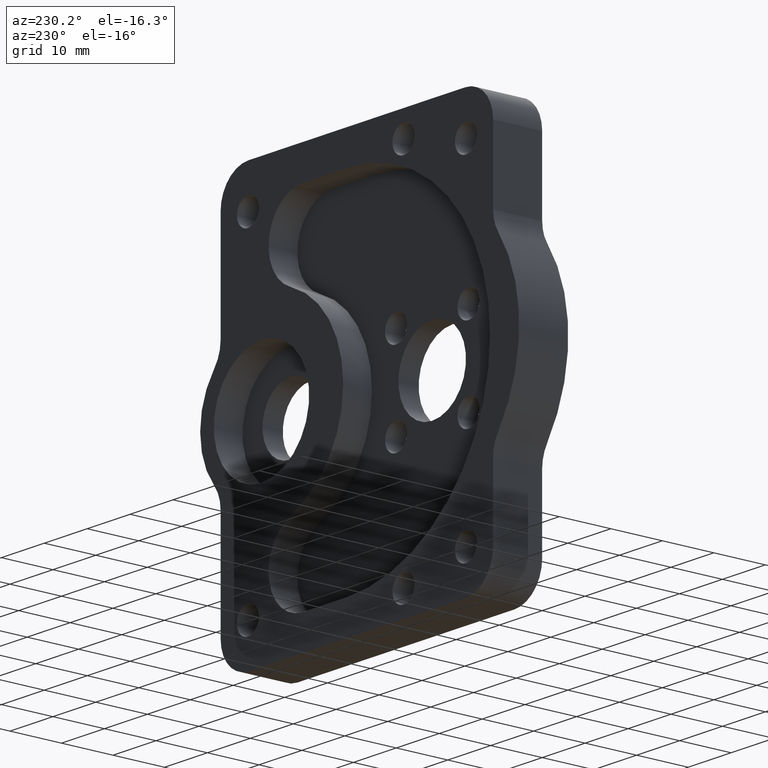
[diagram: clean part render]
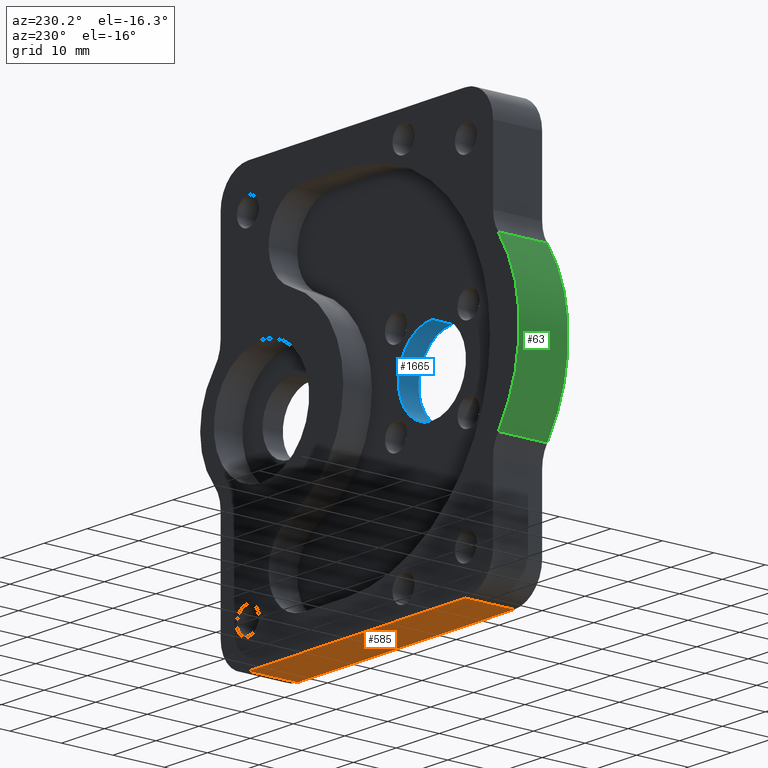
[diagram: same view with three faces highlighted in distinct colors, each labeled with its STEP entity id]
A machine part, auxiliary view with three faces highlighted in distinct colors.
Their STEP definitions:

[orange] entity #585 — the highlighted planar face has unit normal (0, 0, 1).
#8 = ORIENTED_EDGE ( 'NONE', *, *, #1420, .T. ) ;
#193 = EDGE_CURVE ( 'NONE', #611, #2001, #1591, .T. ) ;
#308 = ORIENTED_EDGE ( 'NONE', *, *, #372, .T. ) ;
#372 = EDGE_CURVE ( 'NONE', #982, #1161, #2130, .T. ) ;
#508 = DIRECTION ( 'NONE',  ( -1.000000000000000000, -0.0000000000000000000, -0.0000000000000000000 ) ) ;
#509 = ORIENTED_EDGE ( 'NONE', *, *, #1791, .F. ) ;
#513 = CARTESIAN_POINT ( 'NONE',  ( 2.245000000000000107, 0.0000000000000000000, -3.125000000000000000 ) ) ;
#529 = DIRECTION ( 'NONE',  ( -0.0000000000000000000, 1.000000000000000000, -0.0000000000000000000 ) ) ;
#585 = ADVANCED_FACE ( 'NONE', ( #963 ), #1828, .F. ) ;
#611 = VERTEX_POINT ( 'NONE', #1932 ) ;
#784 = DIRECTION ( 'NONE',  ( -1.000000000000000000, -0.0000000000000000000, -0.0000000000000000000 ) ) ;
#823 = CARTESIAN_POINT ( 'NONE',  ( 0.2550000000000000044, 0.3750000000000000555, -3.125000000000000000 ) ) ;
#963 = FACE_OUTER_BOUND ( 'NONE', #1896, .T. ) ;
#982 = VERTEX_POINT ( 'NONE', #1071 ) ;
#1071 = CARTESIAN_POINT ( 'NONE',  ( 2.245000000000000107, 0.3750000000000000555, -3.125000000000000000 ) ) ;
#1121 = DIRECTION ( 'NONE',  ( 1.000000000000000000, 0.0000000000000000000, -0.0000000000000000000 ) ) ;
#1137 = AXIS2_PLACEMENT_3D ( 'NONE', #2154, #1461, #1121 ) ;
#1158 = CARTESIAN_POINT ( 'NONE',  ( 0.0000000000000000000, 0.3750000000000000555, -3.125000000000000000 ) ) ;
#1161 = VERTEX_POINT ( 'NONE', #513 ) ;
#1215 = VECTOR ( 'NONE', #784, 39.37007874015748143 ) ;
#1252 = CARTESIAN_POINT ( 'NONE',  ( 0.2550000000000000044, 0.3750000000000000555, -3.125000000000000000 ) ) ;
#1290 = VECTOR ( 'NONE', #529, 39.37007874015748143 ) ;
#1420 = EDGE_CURVE ( 'NONE', #1161, #611, #2156, .T. ) ;
#1453 = VECTOR ( 'NONE', #1807, 39.37007874015748143 ) ;
#1461 = DIRECTION ( 'NONE',  ( 0.0000000000000000000, 0.0000000000000000000, 1.000000000000000000 ) ) ;
#1465 = CARTESIAN_POINT ( 'NONE',  ( 0.0000000000000000000, 0.0000000000000000000, -3.125000000000000000 ) ) ;
#1479 = ORIENTED_EDGE ( 'NONE', *, *, #193, .T. ) ;
#1591 = LINE ( 'NONE', #823, #1290 ) ;
#1790 = CARTESIAN_POINT ( 'NONE',  ( 2.245000000000000107, 0.3750000000000000555, -3.125000000000000000 ) ) ;
#1791 = EDGE_CURVE ( 'NONE', #982, #2001, #1851, .T. ) ;
#1807 = DIRECTION ( 'NONE',  ( -0.0000000000000000000, -1.000000000000000000, 0.0000000000000000000 ) ) ;
#1828 = PLANE ( 'NONE',  #1137 ) ;
#1851 = LINE ( 'NONE', #1158, #1904 ) ;
#1896 = EDGE_LOOP ( 'NONE', ( #509, #308, #8, #1479 ) ) ;
#1904 = VECTOR ( 'NONE', #508, 39.37007874015748143 ) ;
#1932 = CARTESIAN_POINT ( 'NONE',  ( 0.2550000000000000044, 0.0000000000000000000, -3.125000000000000000 ) ) ;
#2001 = VERTEX_POINT ( 'NONE', #1252 ) ;
#2130 = LINE ( 'NONE', #1790, #1453 ) ;
#2154 = CARTESIAN_POINT ( 'NONE',  ( 0.0000000000000000000, 0.3750000000000000555, -3.125000000000000000 ) ) ;
#2156 = LINE ( 'NONE', #1465, #1215 ) ;

[blue] entity #1665 — the highlighted cylindrical surface (partial cylindrical patch) has radius 7.874 mm, axis along (-0, 1, -0).
#35 = ORIENTED_EDGE ( 'NONE', *, *, #1292, .T. ) ;
#82 = CARTESIAN_POINT ( 'NONE',  ( 0.8229999999999999538, 0.1549999999999999989, -1.252500000000000169 ) ) ;
#200 = LINE ( 'NONE', #603, #890 ) ;
#245 = FACE_OUTER_BOUND ( 'NONE', #562, .T. ) ;
#257 = DIRECTION ( 'NONE',  ( -0.0000000000000000000, 1.000000000000000000, -0.0000000000000000000 ) ) ;
#259 = ORIENTED_EDGE ( 'NONE', *, *, #1123, .F. ) ;
#260 = DIRECTION ( 'NONE',  ( 0.0000000000000000000, 0.0000000000000000000, -1.000000000000000000 ) ) ;
#366 = CARTESIAN_POINT ( 'NONE',  ( 0.8229999999999999538, 0.0000000000000000000, -1.252500000000000169 ) ) ;
#392 = DIRECTION ( 'NONE',  ( -0.0000000000000000000, 1.000000000000000000, -0.0000000000000000000 ) ) ;
#398 = CIRCLE ( 'NONE', #1180, 0.3099999999999999978 ) ;
#562 = EDGE_LOOP ( 'NONE', ( #259, #2032, #35, #909 ) ) ;
#591 = AXIS2_PLACEMENT_3D ( 'NONE', #941, #1377, #1844 ) ;
#603 = CARTESIAN_POINT ( 'NONE',  ( 0.8229999999999999538, 0.0000000000000000000, -1.872500000000000053 ) ) ;
#637 = CARTESIAN_POINT ( 'NONE',  ( 0.8229999999999999538, 0.0000000000000000000, -1.252500000000000169 ) ) ;
#890 = VECTOR ( 'NONE', #1027, 39.37007874015748143 ) ;
#908 = EDGE_CURVE ( 'NONE', #1159, #1969, #398, .T. ) ;
#909 = ORIENTED_EDGE ( 'NONE', *, *, #908, .T. ) ;
#927 = VECTOR ( 'NONE', #257, 39.37007874015748143 ) ;
#941 = CARTESIAN_POINT ( 'NONE',  ( 0.8229999999999999538, 0.0000000000000000000, -1.562500000000000000 ) ) ;
#953 = CARTESIAN_POINT ( 'NONE',  ( 0.8229999999999999538, 0.1549999999999999989, -1.872500000000000053 ) ) ;
#1027 = DIRECTION ( 'NONE',  ( -0.0000000000000000000, 1.000000000000000000, -0.0000000000000000000 ) ) ;
#1038 = CARTESIAN_POINT ( 'NONE',  ( 0.8229999999999999538, 0.0000000000000000000, -1.562500000000000000 ) ) ;
#1123 = EDGE_CURVE ( 'NONE', #2021, #1969, #200, .T. ) ;
#1154 = EDGE_CURVE ( 'NONE', #1418, #2021, #2078, .T. ) ;
#1159 = VERTEX_POINT ( 'NONE', #82 ) ;
#1180 = AXIS2_PLACEMENT_3D ( 'NONE', #1536, #1991, #260 ) ;
#1292 = EDGE_CURVE ( 'NONE', #1418, #1159, #2107, .T. ) ;
#1377 = DIRECTION ( 'NONE',  ( 0.0000000000000000000, 1.000000000000000000, 0.0000000000000000000 ) ) ;
#1394 = CARTESIAN_POINT ( 'NONE',  ( 0.8229999999999999538, 0.0000000000000000000, -1.872500000000000053 ) ) ;
#1418 = VERTEX_POINT ( 'NONE', #637 ) ;
#1536 = CARTESIAN_POINT ( 'NONE',  ( 0.8229999999999999538, 0.1549999999999999989, -1.562500000000000000 ) ) ;
#1665 = ADVANCED_FACE ( 'NONE', ( #245 ), #1737, .F. ) ;
#1737 = CYLINDRICAL_SURFACE ( 'NONE', #2048, 0.3099999999999999978 ) ;
#1844 = DIRECTION ( 'NONE',  ( 0.0000000000000000000, 0.0000000000000000000, 1.000000000000000000 ) ) ;
#1895 = DIRECTION ( 'NONE',  ( 0.0000000000000000000, 0.0000000000000000000, 1.000000000000000000 ) ) ;
#1969 = VERTEX_POINT ( 'NONE', #953 ) ;
#1991 = DIRECTION ( 'NONE',  ( -0.0000000000000000000, 1.000000000000000000, -0.0000000000000000000 ) ) ;
#2021 = VERTEX_POINT ( 'NONE', #1394 ) ;
#2032 = ORIENTED_EDGE ( 'NONE', *, *, #1154, .F. ) ;
#2048 = AXIS2_PLACEMENT_3D ( 'NONE', #1038, #392, #1895 ) ;
#2078 = CIRCLE ( 'NONE', #591, 0.3099999999999999978 ) ;
#2107 = LINE ( 'NONE', #366, #927 ) ;

[green] entity #63 — the highlighted cylindrical surface (partial cylindrical patch) has radius 26.9875 mm, axis along (0, 1, 0).
#63 = ADVANCED_FACE ( 'NONE', ( #1410 ), #1346, .T. ) ;
#67 = DIRECTION ( 'NONE',  ( 0.0000000000000000000, 1.000000000000000000, 0.0000000000000000000 ) ) ;
#73 = VERTEX_POINT ( 'NONE', #286 ) ;
#83 = VERTEX_POINT ( 'NONE', #362 ) ;
#98 = CARTESIAN_POINT ( 'NONE',  ( -0.04635483870967767317, 0.3750000000000000555, -0.9516576190111966094 ) ) ;
#174 = LINE ( 'NONE', #1657, #300 ) ;
#185 = ORIENTED_EDGE ( 'NONE', *, *, #1873, .F. ) ;
#263 = EDGE_CURVE ( 'NONE', #83, #73, #1285, .T. ) ;
#285 = LINE ( 'NONE', #1785, #1044 ) ;
#286 = CARTESIAN_POINT ( 'NONE',  ( -0.04635483870967767317, 0.0000000000000000000, -0.9516576190111966094 ) ) ;
#300 = VECTOR ( 'NONE', #965, 39.37007874015748143 ) ;
#362 = CARTESIAN_POINT ( 'NONE',  ( -0.04635483870967767317, 0.0000000000000000000, -2.173342380988803502 ) ) ;
#377 = CARTESIAN_POINT ( 'NONE',  ( 0.8229999999999999538, 0.0000000000000000000, -1.562500000000000000 ) ) ;
#427 = EDGE_LOOP ( 'NONE', ( #185, #1148, #964, #2039 ) ) ;
#667 = VERTEX_POINT ( 'NONE', #98 ) ;
#964 = ORIENTED_EDGE ( 'NONE', *, *, #263, .T. ) ;
#965 = DIRECTION ( 'NONE',  ( 0.0000000000000000000, 1.000000000000000000, 0.0000000000000000000 ) ) ;
#1044 = VECTOR ( 'NONE', #1085, 39.37007874015748143 ) ;
#1085 = DIRECTION ( 'NONE',  ( -0.0000000000000000000, -1.000000000000000000, -0.0000000000000000000 ) ) ;
#1124 = CARTESIAN_POINT ( 'NONE',  ( 0.8229999999999999538, 0.3750000000000000555, -1.562500000000000000 ) ) ;
#1148 = ORIENTED_EDGE ( 'NONE', *, *, #1563, .T. ) ;
#1268 = DIRECTION ( 'NONE',  ( 0.0000000000000000000, 0.0000000000000000000, -1.000000000000000000 ) ) ;
#1285 = CIRCLE ( 'NONE', #1614, 1.062500000000000000 ) ;
#1346 = CYLINDRICAL_SURFACE ( 'NONE', #1590, 1.062500000000000000 ) ;
#1397 = EDGE_CURVE ( 'NONE', #73, #667, #174, .T. ) ;
#1410 = FACE_OUTER_BOUND ( 'NONE', #427, .T. ) ;
#1434 = CIRCLE ( 'NONE', #1460, 1.062500000000000000 ) ;
#1460 = AXIS2_PLACEMENT_3D ( 'NONE', #1124, #1808, #1965 ) ;
#1544 = CARTESIAN_POINT ( 'NONE',  ( 0.8229999999999999538, -1.365162719238992128, -1.562500000000000000 ) ) ;
#1563 = EDGE_CURVE ( 'NONE', #2055, #83, #285, .T. ) ;
#1590 = AXIS2_PLACEMENT_3D ( 'NONE', #1544, #67, #1597 ) ;
#1597 = DIRECTION ( 'NONE',  ( 0.0000000000000000000, 0.0000000000000000000, 1.000000000000000000 ) ) ;
#1614 = AXIS2_PLACEMENT_3D ( 'NONE', #377, #1618, #1268 ) ;
#1618 = DIRECTION ( 'NONE',  ( -0.0000000000000000000, 1.000000000000000000, -0.0000000000000000000 ) ) ;
#1657 = CARTESIAN_POINT ( 'NONE',  ( -0.04635483870967780501, -1.365162719238992128, -0.9516576190111967204 ) ) ;
#1785 = CARTESIAN_POINT ( 'NONE',  ( -0.04635483870967780501, -1.365162719238992128, -2.173342380988803502 ) ) ;
#1808 = DIRECTION ( 'NONE',  ( 0.0000000000000000000, 1.000000000000000000, -0.0000000000000000000 ) ) ;
#1873 = EDGE_CURVE ( 'NONE', #2055, #667, #1434, .T. ) ;
#1897 = CARTESIAN_POINT ( 'NONE',  ( -0.04635483870967767317, 0.3750000000000000555, -2.173342380988803502 ) ) ;
#1965 = DIRECTION ( 'NONE',  ( 0.0000000000000000000, 0.0000000000000000000, 1.000000000000000000 ) ) ;
#2039 = ORIENTED_EDGE ( 'NONE', *, *, #1397, .T. ) ;
#2055 = VERTEX_POINT ( 'NONE', #1897 ) ;